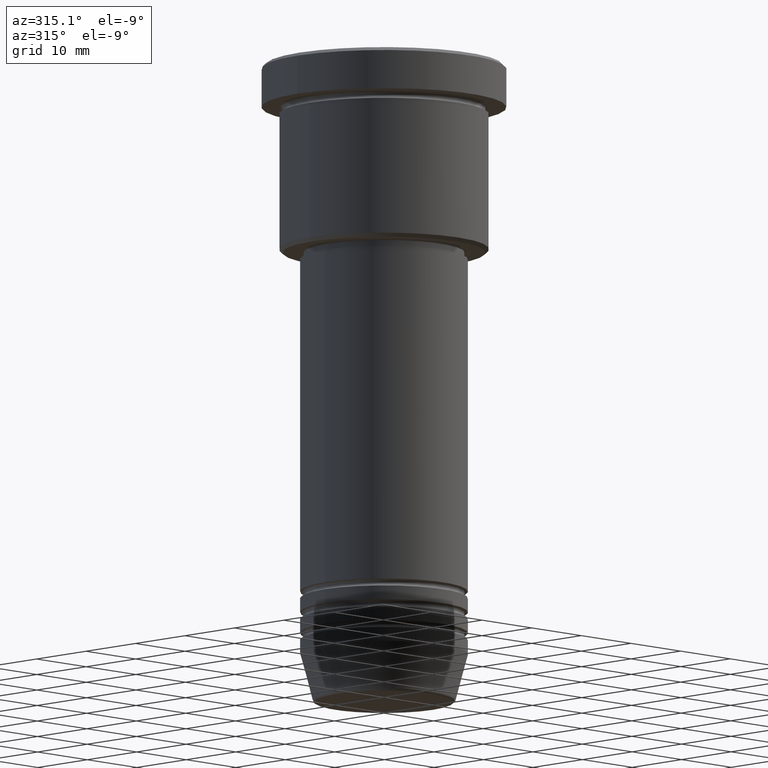
[diagram: clean part render]
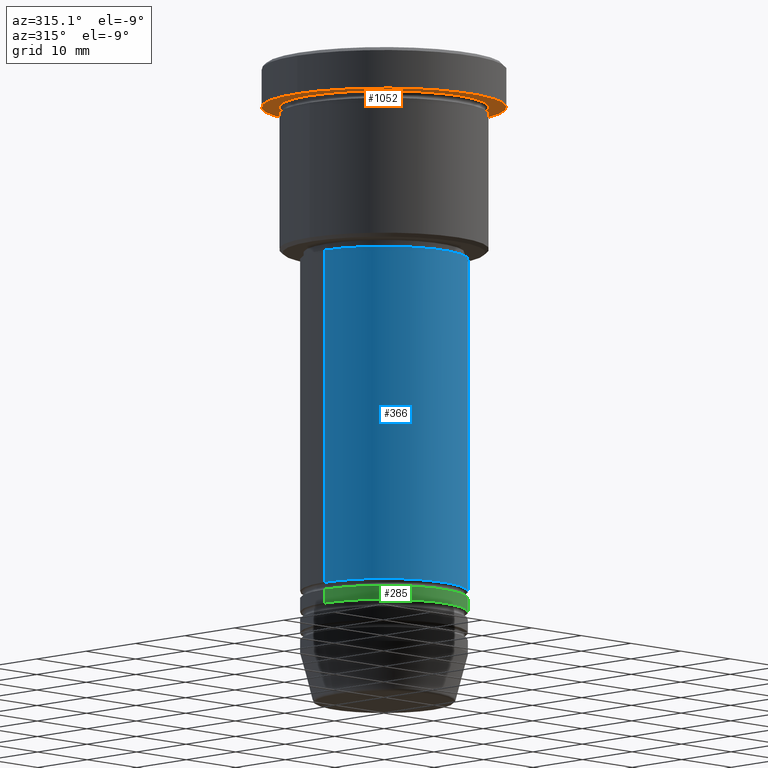
[diagram: same view with three faces highlighted in distinct colors, each labeled with its STEP entity id]
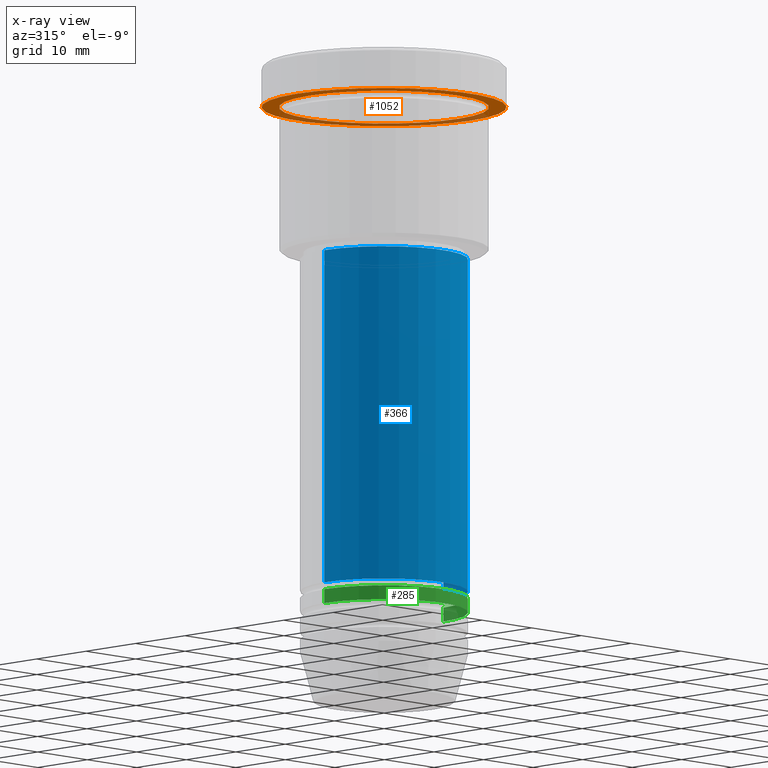
[diagram: x-ray of the same camera — body ghosted, the three highlighted faces saturated]
A machine part, auxiliary view with three faces highlighted in distinct colors.
The next image is the same camera in x-ray (body ghosted, the three faces saturated) — at least one of them is partly hidden behind the body in this view.
Their STEP definitions:

[orange] entity #1052 — the highlighted planar face has unit normal (0, 0, -1).
#68 = VERTEX_POINT ( 'NONE', #558 ) ;
#88 = ORIENTED_EDGE ( 'NONE', *, *, #404, .T. ) ;
#91 = DIRECTION ( 'NONE',  ( -1.000000000000000000, 0.000000000000000000, 0.000000000000000000 ) ) ;
#127 = DIRECTION ( 'NONE',  ( 1.000000000000000000, 0.000000000000000000, 0.000000000000000000 ) ) ;
#146 = AXIS2_PLACEMENT_3D ( 'NONE', #950, #661, #127 ) ;
#156 = EDGE_LOOP ( 'NONE', ( #332, #88 ) ) ;
#186 = CARTESIAN_POINT ( 'NONE',  ( 0.000000000000000000, 0.000000000000000000, -5.999999999999995559 ) ) ;
#237 = EDGE_CURVE ( 'NONE', #1026, #68, #963, .T. ) ;
#262 = EDGE_LOOP ( 'NONE', ( #722, #1100 ) ) ;
#266 = DIRECTION ( 'NONE',  ( 0.000000000000000000, 0.000000000000000000, -1.000000000000000000 ) ) ;
#275 = FACE_BOUND ( 'NONE', #156, .T. ) ;
#279 = PLANE ( 'NONE',  #986 ) ;
#283 = FACE_OUTER_BOUND ( 'NONE', #262, .T. ) ;
#311 = CARTESIAN_POINT ( 'NONE',  ( 0.000000000000000000, 0.000000000000000000, -5.999999999999995559 ) ) ;
#332 = ORIENTED_EDGE ( 'NONE', *, *, #1095, .T. ) ;
#404 = EDGE_CURVE ( 'NONE', #1073, #671, #426, .T. ) ;
#421 = DIRECTION ( 'NONE',  ( -1.000000000000000000, 0.000000000000000000, 0.000000000000000000 ) ) ;
#426 = CIRCLE ( 'NONE', #1043, 15.00000000000000000 ) ;
#439 = DIRECTION ( 'NONE',  ( -0.000000000000000000, -0.000000000000000000, 1.000000000000000000 ) ) ;
#446 = AXIS2_PLACEMENT_3D ( 'NONE', #186, #439, #91 ) ;
#530 = CARTESIAN_POINT ( 'NONE',  ( 15.00000000000000000, 1.836970198721029589E-15, -5.999999999999994671 ) ) ;
#558 = CARTESIAN_POINT ( 'NONE',  ( 17.50000000000000000, 0.000000000000000000, -5.999999999999995559 ) ) ;
#561 = CIRCLE ( 'NONE', #446, 15.00000000000000000 ) ;
#592 = DIRECTION ( 'NONE',  ( -0.000000000000000000, -0.000000000000000000, 1.000000000000000000 ) ) ;
#621 = DIRECTION ( 'NONE',  ( -1.000000000000000000, 0.000000000000000000, -0.000000000000000000 ) ) ;
#655 = CIRCLE ( 'NONE', #146, 17.50000000000000000 ) ;
#661 = DIRECTION ( 'NONE',  ( -0.000000000000000000, -0.000000000000000000, 1.000000000000000000 ) ) ;
#671 = VERTEX_POINT ( 'NONE', #1140 ) ;
#711 = CARTESIAN_POINT ( 'NONE',  ( -17.50000000000000000, 2.143131898507868248E-15, -5.999999999999995559 ) ) ;
#722 = ORIENTED_EDGE ( 'NONE', *, *, #1139, .F. ) ;
#793 = AXIS2_PLACEMENT_3D ( 'NONE', #311, #592, #1127 ) ;
#950 = CARTESIAN_POINT ( 'NONE',  ( 0.000000000000000000, 0.000000000000000000, -5.999999999999995559 ) ) ;
#963 = CIRCLE ( 'NONE', #793, 17.50000000000000000 ) ;
#986 = AXIS2_PLACEMENT_3D ( 'NONE', #1076, #266, #621 ) ;
#1026 = VERTEX_POINT ( 'NONE', #711 ) ;
#1043 = AXIS2_PLACEMENT_3D ( 'NONE', #1057, #1154, #421 ) ;
#1052 = ADVANCED_FACE ( 'NONE', ( #275, #283 ), #279, .T. ) ;
#1057 = CARTESIAN_POINT ( 'NONE',  ( 0.000000000000000000, 0.000000000000000000, -5.999999999999995559 ) ) ;
#1073 = VERTEX_POINT ( 'NONE', #530 ) ;
#1076 = CARTESIAN_POINT ( 'NONE',  ( 0.000000000000000000, 17.50000000000000000, -5.999999999999995559 ) ) ;
#1095 = EDGE_CURVE ( 'NONE', #671, #1073, #561, .T. ) ;
#1100 = ORIENTED_EDGE ( 'NONE', *, *, #237, .F. ) ;
#1127 = DIRECTION ( 'NONE',  ( 1.000000000000000000, 0.000000000000000000, 0.000000000000000000 ) ) ;
#1139 = EDGE_CURVE ( 'NONE', #68, #1026, #655, .T. ) ;
#1140 = CARTESIAN_POINT ( 'NONE',  ( -15.00000000000000000, 0.000000000000000000, -5.999999999999994671 ) ) ;
#1154 = DIRECTION ( 'NONE',  ( -0.000000000000000000, -0.000000000000000000, 1.000000000000000000 ) ) ;

[blue] entity #366 — the highlighted cylindrical surface (partial cylindrical patch) has radius 12 mm, axis along (-0, -0, 1).
#19 = DIRECTION ( 'NONE',  ( -0.000000000000000000, -0.000000000000000000, 1.000000000000000000 ) ) ;
#65 = CARTESIAN_POINT ( 'NONE',  ( 0.000000000000000000, 0.000000000000000000, 0.000000000000000000 ) ) ;
#75 = ORIENTED_EDGE ( 'NONE', *, *, #1163, .T. ) ;
#116 = EDGE_CURVE ( 'NONE', #751, #585, #683, .T. ) ;
#167 = AXIS2_PLACEMENT_3D ( 'NONE', #458, #19, #750 ) ;
#179 = VERTEX_POINT ( 'NONE', #643 ) ;
#210 = DIRECTION ( 'NONE',  ( -0.000000000000000000, -0.000000000000000000, 1.000000000000000000 ) ) ;
#225 = CARTESIAN_POINT ( 'NONE',  ( -12.00000000000000000, 1.469576158976823947E-15, 0.000000000000000000 ) ) ;
#231 = CARTESIAN_POINT ( 'NONE',  ( 12.00000000000000000, 0.000000000000000000, 0.000000000000000000 ) ) ;
#318 = AXIS2_PLACEMENT_3D ( 'NONE', #65, #521, #872 ) ;
#331 = CYLINDRICAL_SURFACE ( 'NONE', #318, 12.00000000000000000 ) ;
#366 = ADVANCED_FACE ( 'NONE', ( #1133 ), #331, .T. ) ;
#393 = VECTOR ( 'NONE', #562, 1000.000000000000000 ) ;
#436 = CARTESIAN_POINT ( 'NONE',  ( 0.000000000000000000, 0.000000000000000000, -27.99999999999996803 ) ) ;
#458 = CARTESIAN_POINT ( 'NONE',  ( 0.000000000000000000, 0.000000000000000000, -75.99999999999997158 ) ) ;
#521 = DIRECTION ( 'NONE',  ( -0.000000000000000000, -0.000000000000000000, 1.000000000000000000 ) ) ;
#539 = VECTOR ( 'NONE', #210, 1000.000000000000000 ) ;
#562 = DIRECTION ( 'NONE',  ( -0.000000000000000000, -0.000000000000000000, 1.000000000000000000 ) ) ;
#567 = EDGE_LOOP ( 'NONE', ( #1093, #686, #75, #838 ) ) ;
#585 = VERTEX_POINT ( 'NONE', #1114 ) ;
#588 = EDGE_CURVE ( 'NONE', #835, #179, #907, .T. ) ;
#635 = DIRECTION ( 'NONE',  ( 1.000000000000000000, 0.000000000000000000, 0.000000000000000000 ) ) ;
#643 = CARTESIAN_POINT ( 'NONE',  ( 12.00000000000000000, 0.000000000000000000, -27.99999999999996803 ) ) ;
#683 = CIRCLE ( 'NONE', #167, 12.00000000000000000 ) ;
#686 = ORIENTED_EDGE ( 'NONE', *, *, #116, .T. ) ;
#750 = DIRECTION ( 'NONE',  ( 1.000000000000000000, 0.000000000000000000, 0.000000000000000000 ) ) ;
#751 = VERTEX_POINT ( 'NONE', #774 ) ;
#767 = CARTESIAN_POINT ( 'NONE',  ( -12.00000000000000000, 1.469576158976823947E-15, -27.99999999999996803 ) ) ;
#774 = CARTESIAN_POINT ( 'NONE',  ( -12.00000000000000000, 1.469576158976823947E-15, -75.99999999999997158 ) ) ;
#835 = VERTEX_POINT ( 'NONE', #767 ) ;
#838 = ORIENTED_EDGE ( 'NONE', *, *, #588, .F. ) ;
#843 = LINE ( 'NONE', #231, #393 ) ;
#872 = DIRECTION ( 'NONE',  ( 1.000000000000000000, 0.000000000000000000, 0.000000000000000000 ) ) ;
#907 = CIRCLE ( 'NONE', #1125, 12.00000000000000000 ) ;
#992 = DIRECTION ( 'NONE',  ( -0.000000000000000000, -0.000000000000000000, 1.000000000000000000 ) ) ;
#1020 = LINE ( 'NONE', #225, #539 ) ;
#1093 = ORIENTED_EDGE ( 'NONE', *, *, #1149, .F. ) ;
#1114 = CARTESIAN_POINT ( 'NONE',  ( 12.00000000000000000, 0.000000000000000000, -75.99999999999997158 ) ) ;
#1125 = AXIS2_PLACEMENT_3D ( 'NONE', #436, #992, #635 ) ;
#1133 = FACE_OUTER_BOUND ( 'NONE', #567, .T. ) ;
#1149 = EDGE_CURVE ( 'NONE', #751, #835, #1020, .T. ) ;
#1163 = EDGE_CURVE ( 'NONE', #585, #179, #843, .T. ) ;

[green] entity #285 — the highlighted cylindrical surface (partial cylindrical patch) has radius 12 mm, axis along (-0, -0, 1).
#72 = DIRECTION ( 'NONE',  ( -0.000000000000000000, -0.000000000000000000, 1.000000000000000000 ) ) ;
#124 = VERTEX_POINT ( 'NONE', #927 ) ;
#141 = CARTESIAN_POINT ( 'NONE',  ( -12.00000000000000000, 1.469576158976823947E-15, -78.99999999999997158 ) ) ;
#143 = LINE ( 'NONE', #391, #825 ) ;
#182 = DIRECTION ( 'NONE',  ( -0.000000000000000000, -0.000000000000000000, 1.000000000000000000 ) ) ;
#228 = CARTESIAN_POINT ( 'NONE',  ( 0.000000000000000000, 0.000000000000000000, 0.000000000000000000 ) ) ;
#232 = AXIS2_PLACEMENT_3D ( 'NONE', #269, #697, #1078 ) ;
#247 = EDGE_LOOP ( 'NONE', ( #1085, #904, #1077, #517 ) ) ;
#269 = CARTESIAN_POINT ( 'NONE',  ( 0.000000000000000000, 0.000000000000000000, -78.99999999999997158 ) ) ;
#282 = EDGE_CURVE ( 'NONE', #898, #124, #143, .T. ) ;
#285 = ADVANCED_FACE ( 'NONE', ( #933 ), #675, .T. ) ;
#316 = VERTEX_POINT ( 'NONE', #938 ) ;
#322 = DIRECTION ( 'NONE',  ( -0.000000000000000000, -0.000000000000000000, 1.000000000000000000 ) ) ;
#375 = EDGE_CURVE ( 'NONE', #898, #316, #657, .T. ) ;
#391 = CARTESIAN_POINT ( 'NONE',  ( -12.00000000000000000, 1.469576158976823947E-15, 0.000000000000000000 ) ) ;
#401 = EDGE_CURVE ( 'NONE', #316, #449, #496, .T. ) ;
#440 = VECTOR ( 'NONE', #72, 1000.000000000000000 ) ;
#449 = VERTEX_POINT ( 'NONE', #1071 ) ;
#457 = CARTESIAN_POINT ( 'NONE',  ( 0.000000000000000000, 0.000000000000000000, -76.99999999999997158 ) ) ;
#473 = DIRECTION ( 'NONE',  ( 1.000000000000000000, 0.000000000000000000, 0.000000000000000000 ) ) ;
#496 = LINE ( 'NONE', #781, #440 ) ;
#517 = ORIENTED_EDGE ( 'NONE', *, *, #638, .F. ) ;
#638 = EDGE_CURVE ( 'NONE', #124, #449, #723, .T. ) ;
#657 = CIRCLE ( 'NONE', #232, 12.00000000000000000 ) ;
#675 = CYLINDRICAL_SURFACE ( 'NONE', #1142, 12.00000000000000000 ) ;
#697 = DIRECTION ( 'NONE',  ( -0.000000000000000000, -0.000000000000000000, 1.000000000000000000 ) ) ;
#723 = CIRCLE ( 'NONE', #1060, 12.00000000000000000 ) ;
#754 = DIRECTION ( 'NONE',  ( -0.000000000000000000, -0.000000000000000000, 1.000000000000000000 ) ) ;
#781 = CARTESIAN_POINT ( 'NONE',  ( 12.00000000000000000, 0.000000000000000000, 0.000000000000000000 ) ) ;
#825 = VECTOR ( 'NONE', #754, 1000.000000000000000 ) ;
#898 = VERTEX_POINT ( 'NONE', #141 ) ;
#904 = ORIENTED_EDGE ( 'NONE', *, *, #375, .T. ) ;
#927 = CARTESIAN_POINT ( 'NONE',  ( -12.00000000000000000, 1.469576158976823947E-15, -76.99999999999997158 ) ) ;
#933 = FACE_OUTER_BOUND ( 'NONE', #247, .T. ) ;
#938 = CARTESIAN_POINT ( 'NONE',  ( 12.00000000000000000, 0.000000000000000000, -78.99999999999997158 ) ) ;
#1060 = AXIS2_PLACEMENT_3D ( 'NONE', #457, #182, #1110 ) ;
#1071 = CARTESIAN_POINT ( 'NONE',  ( 12.00000000000000000, 0.000000000000000000, -76.99999999999997158 ) ) ;
#1077 = ORIENTED_EDGE ( 'NONE', *, *, #401, .T. ) ;
#1078 = DIRECTION ( 'NONE',  ( 1.000000000000000000, 0.000000000000000000, 0.000000000000000000 ) ) ;
#1085 = ORIENTED_EDGE ( 'NONE', *, *, #282, .F. ) ;
#1110 = DIRECTION ( 'NONE',  ( 1.000000000000000000, 0.000000000000000000, 0.000000000000000000 ) ) ;
#1142 = AXIS2_PLACEMENT_3D ( 'NONE', #228, #322, #473 ) ;